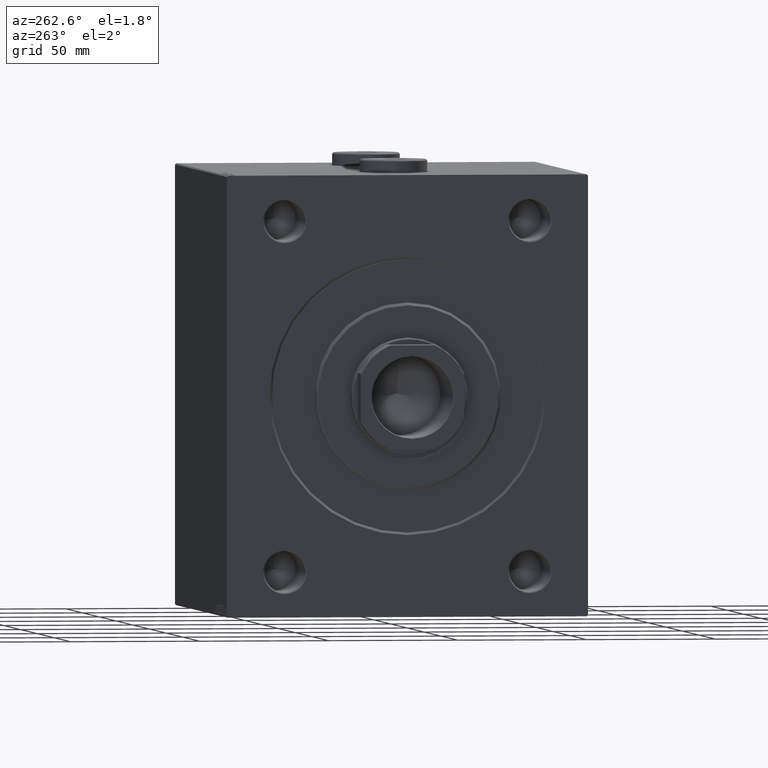
[diagram: clean part render]
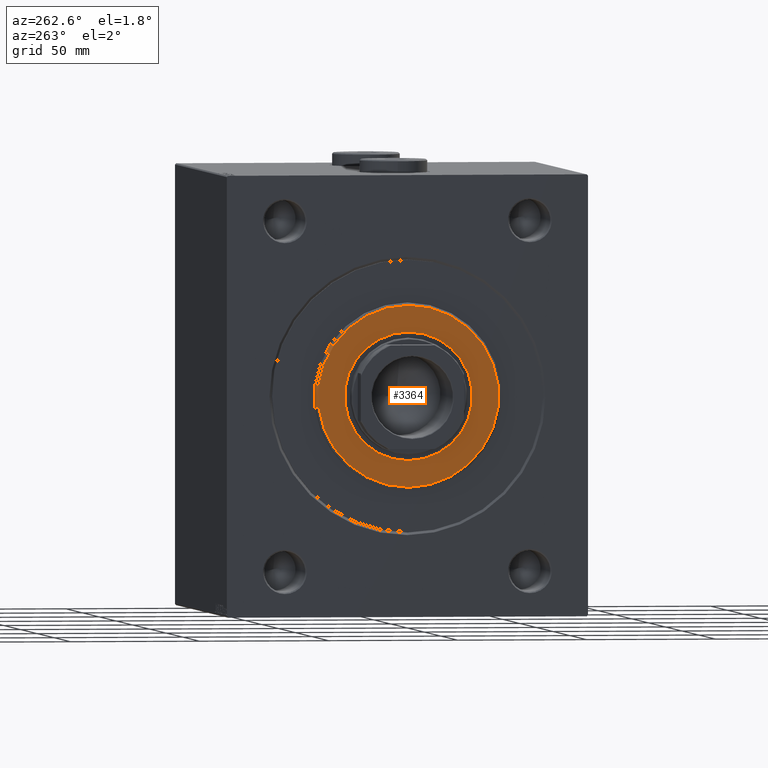
[diagram: same view with one face highlighted and labeled with its STEP entity id]
A machine part, auxiliary view. The second image highlights one B-rep face of the part: STEP entity #3364.
In plain terms, the highlighted planar face has unit normal (-1, 0, 0).
Its self-contained STEP definition (entity closure, byte-faithful):
#336 = EDGE_CURVE ( 'NONE', #6806, #35622, #3327, .T. ) ;
#980 = CARTESIAN_POINT ( 'NONE',  ( 3.000000000000000000, 3.031000827889699650E-15, 24.75000000000000355 ) ) ;
#982 = CIRCLE ( 'NONE', #2467, 24.75000000000000355 ) ;
#1425 = AXIS2_PLACEMENT_3D ( 'NONE', #12266, #40459, #30051 ) ;
#2406 = DIRECTION ( 'NONE',  ( 1.000000000000000000, 0.000000000000000000, 0.000000000000000000 ) ) ;
#2448 = DIRECTION ( 'NONE',  ( 1.000000000000000000, -0.000000000000000000, 0.000000000000000000 ) ) ;
#2467 = AXIS2_PLACEMENT_3D ( 'NONE', #44919, #2406, #24324 ) ;
#2854 = VERTEX_POINT ( 'NONE', #980 ) ;
#3327 = CIRCLE ( 'NONE', #9207, 35.00000000000002842 ) ;
#3364 = ADVANCED_FACE ( 'NONE', ( #23935, #24168 ), #41284, .T. ) ;
#4370 = CIRCLE ( 'NONE', #1425, 24.75000000000000355 ) ;
#6806 = VERTEX_POINT ( 'NONE', #36709 ) ;
#7925 = EDGE_CURVE ( 'NONE', #29235, #2854, #4370, .T. ) ;
#9207 = AXIS2_PLACEMENT_3D ( 'NONE', #23229, #2448, #38245 ) ;
#12251 = AXIS2_PLACEMENT_3D ( 'NONE', #37819, #38049, #38508 ) ;
#12266 = CARTESIAN_POINT ( 'NONE',  ( 3.000000000000000000, 0.000000000000000000, 0.000000000000000000 ) ) ;
#13993 = DIRECTION ( 'NONE',  ( 0.000000000000000000, 0.000000000000000000, -1.000000000000000000 ) ) ;
#16986 = EDGE_LOOP ( 'NONE', ( #32627, #19965 ) ) ;
#17764 = AXIS2_PLACEMENT_3D ( 'NONE', #42187, #42413, #13993 ) ;
#19965 = ORIENTED_EDGE ( 'NONE', *, *, #336, .T. ) ;
#23199 = EDGE_CURVE ( 'NONE', #2854, #29235, #982, .T. ) ;
#23229 = CARTESIAN_POINT ( 'NONE',  ( 3.000000000000000000, 0.000000000000000000, 0.000000000000000000 ) ) ;
#23935 = FACE_OUTER_BOUND ( 'NONE', #16986, .T. ) ;
#23982 = CARTESIAN_POINT ( 'NONE',  ( 3.000000000000000000, 0.000000000000000000, -24.75000000000000355 ) ) ;
#24004 = CARTESIAN_POINT ( 'NONE',  ( 3.000000000000000000, 0.000000000000000000, 35.00000000000002842 ) ) ;
#24168 = FACE_BOUND ( 'NONE', #30181, .T. ) ;
#24324 = DIRECTION ( 'NONE',  ( 0.000000000000000000, 0.000000000000000000, -1.000000000000000000 ) ) ;
#29235 = VERTEX_POINT ( 'NONE', #23982 ) ;
#30051 = DIRECTION ( 'NONE',  ( 0.000000000000000000, 0.000000000000000000, -1.000000000000000000 ) ) ;
#30181 = EDGE_LOOP ( 'NONE', ( #40234, #43138 ) ) ;
#32627 = ORIENTED_EDGE ( 'NONE', *, *, #44399, .T. ) ;
#35622 = VERTEX_POINT ( 'NONE', #24004 ) ;
#36709 = CARTESIAN_POINT ( 'NONE',  ( 3.000000000000000000, 4.347496136973104859E-15, -35.00000000000002842 ) ) ;
#37819 = CARTESIAN_POINT ( 'NONE',  ( 3.000000000000000000, 0.000000000000000000, 0.000000000000000000 ) ) ;
#38049 = DIRECTION ( 'NONE',  ( 1.000000000000000000, -0.000000000000000000, 0.000000000000000000 ) ) ;
#38245 = DIRECTION ( 'NONE',  ( 0.000000000000000000, 0.000000000000000000, -1.000000000000000000 ) ) ;
#38508 = DIRECTION ( 'NONE',  ( 0.000000000000000000, 0.000000000000000000, -1.000000000000000000 ) ) ;
#39897 = CIRCLE ( 'NONE', #17764, 35.00000000000002842 ) ;
#40234 = ORIENTED_EDGE ( 'NONE', *, *, #7925, .F. ) ;
#40459 = DIRECTION ( 'NONE',  ( 1.000000000000000000, 0.000000000000000000, 0.000000000000000000 ) ) ;
#41284 = PLANE ( 'NONE',  #12251 ) ;
#42187 = CARTESIAN_POINT ( 'NONE',  ( 3.000000000000000000, 0.000000000000000000, 0.000000000000000000 ) ) ;
#42413 = DIRECTION ( 'NONE',  ( 1.000000000000000000, -0.000000000000000000, 0.000000000000000000 ) ) ;
#43138 = ORIENTED_EDGE ( 'NONE', *, *, #23199, .F. ) ;
#44399 = EDGE_CURVE ( 'NONE', #35622, #6806, #39897, .T. ) ;
#44919 = CARTESIAN_POINT ( 'NONE',  ( 3.000000000000000000, 0.000000000000000000, 0.000000000000000000 ) ) ;